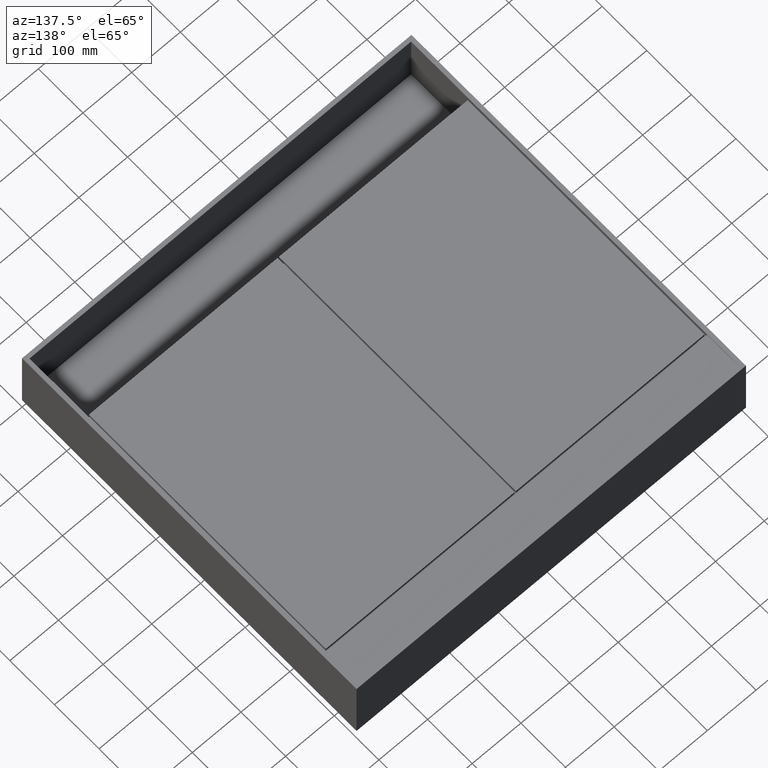
[diagram: clean part render]
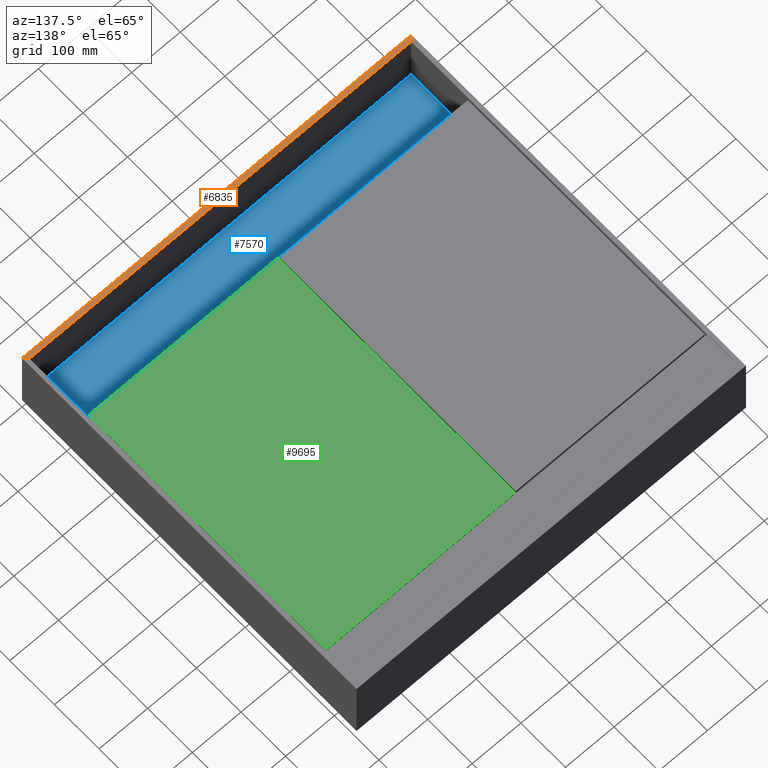
[diagram: same view with three faces highlighted in distinct colors, each labeled with its STEP entity id]
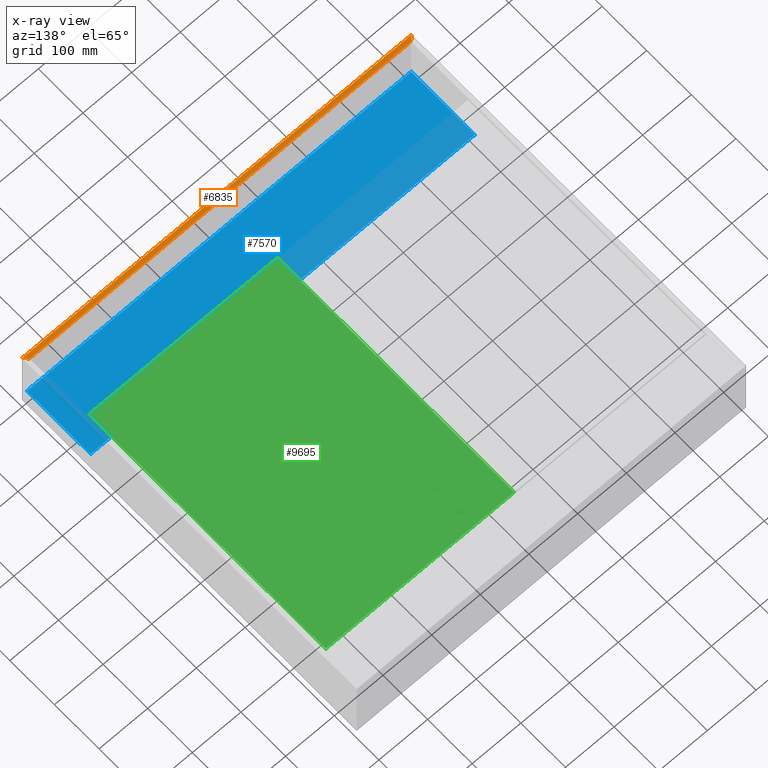
[diagram: x-ray of the same camera — body ghosted, the three highlighted faces saturated]
A machine part, auxiliary view with three faces highlighted in distinct colors.
The next image is the same camera in x-ray (body ghosted, the three faces saturated) — at least one of them is partly hidden behind the body in this view.
Their STEP definitions:

[orange] entity #6835 — the highlighted planar face has unit normal (0, 0, -1).
#38 = AXIS2_PLACEMENT_3D ( 'NONE', #2547, #5980, #9416 ) ;
#76 = CARTESIAN_POINT ( 'NONE',  ( 0.0000000000000000000, 0.0000000000000000000, 0.0000000000000000000 ) ) ;
#348 = VECTOR ( 'NONE', #977, 1000.000000000000114 ) ;
#977 = DIRECTION ( 'NONE',  ( -0.7071067811865474617, -0.7071067811865474617, 0.0000000000000000000 ) ) ;
#1437 = LINE ( 'NONE', #4870, #4276 ) ;
#2248 = CARTESIAN_POINT ( 'NONE',  ( 8.000000000000007105, 8.000000000000000000, 0.0000000000000000000 ) ) ;
#2297 = VERTEX_POINT ( 'NONE', #2248 ) ;
#2403 = EDGE_LOOP ( 'NONE', ( #10613, #9457, #7376, #8150 ) ) ;
#2547 = CARTESIAN_POINT ( 'NONE',  ( 0.0000000000000000000, 8.000000000000000000, 0.0000000000000000000 ) ) ;
#2821 = CARTESIAN_POINT ( 'NONE',  ( 800.0000000000000000, 0.0000000000000000000, 0.0000000000000000000 ) ) ;
#2891 = LINE ( 'NONE', #6321, #7514 ) ;
#2912 = EDGE_CURVE ( 'NONE', #6701, #6988, #7797, .T. ) ;
#3050 = EDGE_CURVE ( 'NONE', #2297, #8048, #2891, .T. ) ;
#3351 = EDGE_CURVE ( 'NONE', #6988, #8048, #1437, .T. ) ;
#3514 = DIRECTION ( 'NONE',  ( 1.000000000000000000, 0.0000000000000000000, 0.0000000000000000000 ) ) ;
#4276 = VECTOR ( 'NONE', #8323, 1000.000000000000114 ) ;
#4780 = EDGE_CURVE ( 'NONE', #2297, #6701, #5262, .T. ) ;
#4870 = CARTESIAN_POINT ( 'NONE',  ( 791.9999999999998863, 8.000000000000000000, 0.0000000000000000000 ) ) ;
#5262 = LINE ( 'NONE', #8701, #348 ) ;
#5694 = CARTESIAN_POINT ( 'NONE',  ( 0.0000000000000000000, 0.0000000000000000000, 0.0000000000000000000 ) ) ;
#5980 = DIRECTION ( 'NONE',  ( 0.0000000000000000000, 0.0000000000000000000, -1.000000000000000000 ) ) ;
#6321 = CARTESIAN_POINT ( 'NONE',  ( 0.0000000000000000000, 8.000000000000000000, 0.0000000000000000000 ) ) ;
#6701 = VERTEX_POINT ( 'NONE', #5694 ) ;
#6823 = FACE_OUTER_BOUND ( 'NONE', #2403, .T. ) ;
#6835 = ADVANCED_FACE ( 'NONE', ( #6823 ), #10266, .F. ) ;
#6988 = VERTEX_POINT ( 'NONE', #2821 ) ;
#7376 = ORIENTED_EDGE ( 'NONE', *, *, #3050, .F. ) ;
#7514 = VECTOR ( 'NONE', #9767, 1000.000000000000000 ) ;
#7786 = CARTESIAN_POINT ( 'NONE',  ( 791.9999999999998863, 8.000000000000000000, 0.0000000000000000000 ) ) ;
#7797 = LINE ( 'NONE', #76, #10582 ) ;
#8048 = VERTEX_POINT ( 'NONE', #7786 ) ;
#8150 = ORIENTED_EDGE ( 'NONE', *, *, #4780, .T. ) ;
#8323 = DIRECTION ( 'NONE',  ( -0.7071067811865474617, 0.7071067811865474617, 0.0000000000000000000 ) ) ;
#8701 = CARTESIAN_POINT ( 'NONE',  ( 8.000000000000007105, 8.000000000000000000, 0.0000000000000000000 ) ) ;
#9416 = DIRECTION ( 'NONE',  ( -1.000000000000000000, 0.0000000000000000000, -0.0000000000000000000 ) ) ;
#9457 = ORIENTED_EDGE ( 'NONE', *, *, #3351, .T. ) ;
#9767 = DIRECTION ( 'NONE',  ( 1.000000000000000000, 0.0000000000000000000, 0.0000000000000000000 ) ) ;
#10266 = PLANE ( 'NONE',  #38 ) ;
#10582 = VECTOR ( 'NONE', #3514, 1000.000000000000000 ) ;
#10613 = ORIENTED_EDGE ( 'NONE', *, *, #2912, .T. ) ;

[blue] entity #7570 — the highlighted planar face has unit normal (-0, 0, -1).
#311 = CARTESIAN_POINT ( 'NONE',  ( 795.0000000000000000, 938.0405052907096888, -117.0000000000000568 ) ) ;
#445 = DIRECTION ( 'NONE',  ( 1.000000000000000000, 0.0000000000000000000, -1.756682000989172166E-17 ) ) ;
#484 = ORIENTED_EDGE ( 'NONE', *, *, #7872, .T. ) ;
#917 = EDGE_CURVE ( 'NONE', #3254, #1444, #4724, .T. ) ;
#1013 = ORIENTED_EDGE ( 'NONE', *, *, #2602, .F. ) ;
#1444 = VERTEX_POINT ( 'NONE', #6774 ) ;
#2219 = DIRECTION ( 'NONE',  ( -0.0000000000000000000, -1.000000000000000000, -0.0000000000000000000 ) ) ;
#2451 = DIRECTION ( 'NONE',  ( -1.000000000000000000, 0.0000000000000000000, 1.756682000989172166E-17 ) ) ;
#2602 = EDGE_CURVE ( 'NONE', #1444, #5922, #8035, .T. ) ;
#3214 = LINE ( 'NONE', #6652, #8256 ) ;
#3254 = VERTEX_POINT ( 'NONE', #6406 ) ;
#3287 = PLANE ( 'NONE',  #3647 ) ;
#3647 = AXIS2_PLACEMENT_3D ( 'NONE', #6730, #10168, #2451 ) ;
#3724 = EDGE_CURVE ( 'NONE', #7622, #5922, #3214, .T. ) ;
#3731 = ORIENTED_EDGE ( 'NONE', *, *, #3724, .T. ) ;
#3743 = DIRECTION ( 'NONE',  ( -0.0000000000000000000, -1.000000000000000000, -0.0000000000000000000 ) ) ;
#4724 = LINE ( 'NONE', #8171, #5681 ) ;
#4843 = CARTESIAN_POINT ( 'NONE',  ( 795.0000000000000000, 5.000000000000004441, -117.0000000000000568 ) ) ;
#5268 = VECTOR ( 'NONE', #2219, 1000.000000000000000 ) ;
#5681 = VECTOR ( 'NONE', #445, 1000.000000000000000 ) ;
#5922 = VERTEX_POINT ( 'NONE', #4843 ) ;
#6406 = CARTESIAN_POINT ( 'NONE',  ( 5.000000000000004441, 148.0000000000000284, -117.0000000000000426 ) ) ;
#6491 = LINE ( 'NONE', #9934, #5268 ) ;
#6652 = CARTESIAN_POINT ( 'NONE',  ( 5.000000000000004441, 5.000000000000004441, -117.0000000000000426 ) ) ;
#6730 = CARTESIAN_POINT ( 'NONE',  ( 5.000000000000004441, 938.0405052907096888, -117.0000000000000426 ) ) ;
#6774 = CARTESIAN_POINT ( 'NONE',  ( 795.0000000000000000, 148.0000000000000284, -117.0000000000000568 ) ) ;
#7355 = EDGE_LOOP ( 'NONE', ( #9995, #484, #3731, #1013 ) ) ;
#7570 = ADVANCED_FACE ( 'NONE', ( #11019 ), #3287, .F. ) ;
#7622 = VERTEX_POINT ( 'NONE', #9367 ) ;
#7872 = EDGE_CURVE ( 'NONE', #3254, #7622, #6491, .T. ) ;
#8035 = LINE ( 'NONE', #311, #10246 ) ;
#8171 = CARTESIAN_POINT ( 'NONE',  ( 5.000000000000004441, 148.0000000000000284, -117.0000000000000426 ) ) ;
#8256 = VECTOR ( 'NONE', #10094, 1000.000000000000000 ) ;
#9367 = CARTESIAN_POINT ( 'NONE',  ( 5.000000000000004441, 5.000000000000004441, -117.0000000000000426 ) ) ;
#9934 = CARTESIAN_POINT ( 'NONE',  ( 5.000000000000004441, 938.0405052907096888, -117.0000000000000426 ) ) ;
#9995 = ORIENTED_EDGE ( 'NONE', *, *, #917, .F. ) ;
#10094 = DIRECTION ( 'NONE',  ( 1.000000000000000000, 0.0000000000000000000, -1.756682000989171858E-17 ) ) ;
#10168 = DIRECTION ( 'NONE',  ( -1.756682000989172166E-17, 0.0000000000000000000, -1.000000000000000000 ) ) ;
#10246 = VECTOR ( 'NONE', #3743, 1000.000000000000000 ) ;
#11019 = FACE_OUTER_BOUND ( 'NONE', #7355, .T. ) ;

[green] entity #9695 — the highlighted planar face has unit normal (0, -0, 1).
#24 = DIRECTION ( 'NONE',  ( -2.090815882686901732E-16, 1.000000000000000000, 1.925929944387235853E-34 ) ) ;
#602 = VERTEX_POINT ( 'NONE', #3210 ) ;
#715 = DIRECTION ( 'NONE',  ( 1.000000000000000000, 1.480015570642578193E-36, 0.0000000000000000000 ) ) ;
#935 = CARTESIAN_POINT ( 'NONE',  ( 789.0000000000001137, 138.0000000000000000, 6.071532165918824830E-14 ) ) ;
#1558 = PLANE ( 'NONE',  #6003 ) ;
#1783 = LINE ( 'NONE', #5221, #3773 ) ;
#2095 = EDGE_CURVE ( 'NONE', #8069, #602, #7607, .T. ) ;
#2307 = ORIENTED_EDGE ( 'NONE', *, *, #5876, .T. ) ;
#3053 = CARTESIAN_POINT ( 'NONE',  ( 401.4999999999999432, 668.9999000000001388, 6.071532165918824830E-14 ) ) ;
#3210 = CARTESIAN_POINT ( 'NONE',  ( 401.5000000000000000, 138.0000000000000000, 6.071532165918824830E-14 ) ) ;
#3319 = DIRECTION ( 'NONE',  ( 1.045407941343450866E-16, -1.000000000000000000, 0.0000000000000000000 ) ) ;
#3487 = EDGE_CURVE ( 'NONE', #9817, #11014, #4304, .T. ) ;
#3773 = VECTOR ( 'NONE', #8660, 1000.000000000000000 ) ;
#4304 = LINE ( 'NONE', #7749, #7524 ) ;
#4642 = VECTOR ( 'NONE', #3319, 1000.000000000000000 ) ;
#4872 = VECTOR ( 'NONE', #6484, 1000.000000000000000 ) ;
#4989 = CARTESIAN_POINT ( 'NONE',  ( 0.0000000000000000000, 0.0000000000000000000, 6.071532165918824830E-14 ) ) ;
#5160 = EDGE_CURVE ( 'NONE', #602, #9817, #1783, .T. ) ;
#5221 = CARTESIAN_POINT ( 'NONE',  ( 401.5000000000000000, 138.0000000000000000, 6.071532165918824830E-14 ) ) ;
#5280 = CARTESIAN_POINT ( 'NONE',  ( 789.0000000000000000, 668.9999000000001388, 6.071532165918824830E-14 ) ) ;
#5876 = EDGE_CURVE ( 'NONE', #11014, #8069, #10780, .T. ) ;
#6003 = AXIS2_PLACEMENT_3D ( 'NONE', #4989, #8443, #715 ) ;
#6021 = EDGE_LOOP ( 'NONE', ( #7166, #10182, #8557, #2307 ) ) ;
#6484 = DIRECTION ( 'NONE',  ( -1.000000000000000000, -1.480015570642578193E-36, 0.0000000000000000000 ) ) ;
#7166 = ORIENTED_EDGE ( 'NONE', *, *, #2095, .T. ) ;
#7524 = VECTOR ( 'NONE', #24, 1000.000000000000000 ) ;
#7607 = LINE ( 'NONE', #11052, #4642 ) ;
#7749 = CARTESIAN_POINT ( 'NONE',  ( 789.0000000000000000, 668.9999000000001388, 6.071532165918824830E-14 ) ) ;
#8069 = VERTEX_POINT ( 'NONE', #9532 ) ;
#8443 = DIRECTION ( 'NONE',  ( 0.0000000000000000000, -0.0000000000000000000, 1.000000000000000000 ) ) ;
#8557 = ORIENTED_EDGE ( 'NONE', *, *, #3487, .T. ) ;
#8660 = DIRECTION ( 'NONE',  ( 1.000000000000000000, 7.162729191130041997E-17, -1.925929944387236281E-34 ) ) ;
#9279 = FACE_OUTER_BOUND ( 'NONE', #6021, .T. ) ;
#9532 = CARTESIAN_POINT ( 'NONE',  ( 401.4999999999999432, 668.9999000000001388, 6.071532165918824830E-14 ) ) ;
#9695 = ADVANCED_FACE ( 'NONE', ( #9279 ), #1558, .T. ) ;
#9817 = VERTEX_POINT ( 'NONE', #935 ) ;
#10182 = ORIENTED_EDGE ( 'NONE', *, *, #5160, .T. ) ;
#10780 = LINE ( 'NONE', #3053, #4872 ) ;
#11014 = VERTEX_POINT ( 'NONE', #5280 ) ;
#11052 = CARTESIAN_POINT ( 'NONE',  ( 401.4999999999999432, 668.9999000000001388, 6.071532165918824830E-14 ) ) ;